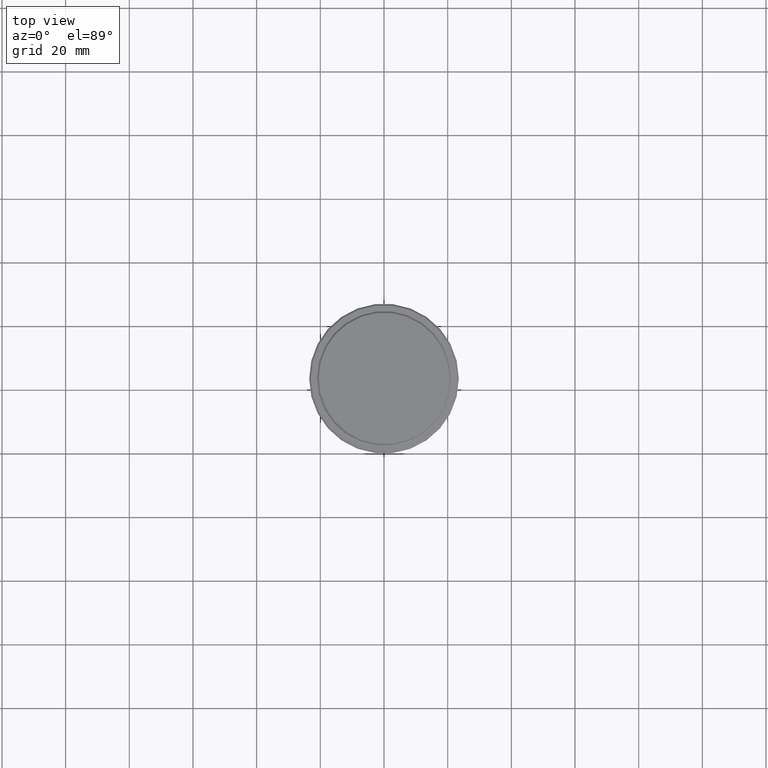
[diagram: clean part render]
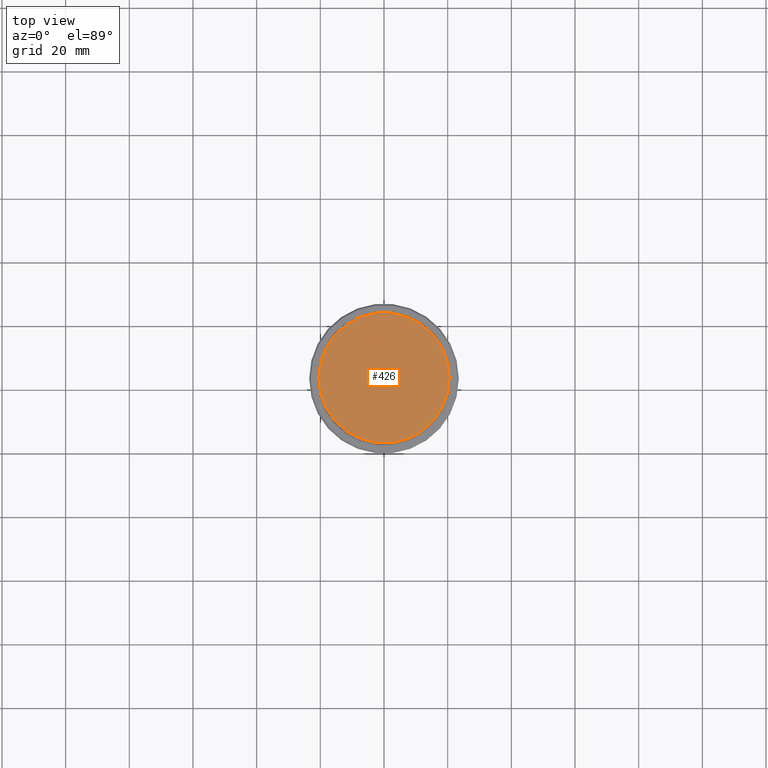
[diagram: same view with one face highlighted and labeled with its STEP entity id]
A machine part, top view. The second image highlights one B-rep face of the part: STEP entity #426.
In plain terms, the highlighted planar face has unit normal (0, -0, 1).
Its self-contained STEP definition (entity closure, byte-faithful):
#19 = DIRECTION ( 'NONE',  ( -0.000000000000000000, -0.000000000000000000, 1.000000000000000000 ) ) ;
#38 = CARTESIAN_POINT ( 'NONE',  ( 20.49999999999998934, 2.541142108230757085E-15, 0.000000000000000000 ) ) ;
#54 = DIRECTION ( 'NONE',  ( 1.000000000000000000, 0.000000000000000000, 0.000000000000000000 ) ) ;
#90 = VERTEX_POINT ( 'NONE', #38 ) ;
#107 = AXIS2_PLACEMENT_3D ( 'NONE', #383, #706, #54 ) ;
#121 = DIRECTION ( 'NONE',  ( 1.000000000000000000, 0.000000000000000000, 0.000000000000000000 ) ) ;
#142 = FACE_OUTER_BOUND ( 'NONE', #844, .T. ) ;
#203 = CIRCLE ( 'NONE', #400, 20.49999999999998934 ) ;
#234 = CARTESIAN_POINT ( 'NONE',  ( 0.000000000000000000, 0.000000000000000000, 0.000000000000000000 ) ) ;
#293 = ORIENTED_EDGE ( 'NONE', *, *, #902, .T. ) ;
#383 = CARTESIAN_POINT ( 'NONE',  ( 0.000000000000000000, 0.000000000000000000, 0.000000000000000000 ) ) ;
#386 = CARTESIAN_POINT ( 'NONE',  ( 0.000000000000000000, 0.000000000000000000, 0.000000000000000000 ) ) ;
#400 = AXIS2_PLACEMENT_3D ( 'NONE', #234, #19, #121 ) ;
#426 = ADVANCED_FACE ( 'NONE', ( #142 ), #1247, .T. ) ;
#706 = DIRECTION ( 'NONE',  ( -0.000000000000000000, -0.000000000000000000, 1.000000000000000000 ) ) ;
#844 = EDGE_LOOP ( 'NONE', ( #293, #958 ) ) ;
#852 = VERTEX_POINT ( 'NONE', #1115 ) ;
#902 = EDGE_CURVE ( 'NONE', #852, #90, #203, .T. ) ;
#958 = ORIENTED_EDGE ( 'NONE', *, *, #1085, .T. ) ;
#1085 = EDGE_CURVE ( 'NONE', #90, #852, #1131, .T. ) ;
#1115 = CARTESIAN_POINT ( 'NONE',  ( -20.49999999999998934, 0.000000000000000000, 0.000000000000000000 ) ) ;
#1131 = CIRCLE ( 'NONE', #107, 20.49999999999998934 ) ;
#1229 = DIRECTION ( 'NONE',  ( 0.000000000000000000, -0.000000000000000000, 1.000000000000000000 ) ) ;
#1235 = DIRECTION ( 'NONE',  ( 1.000000000000000000, 0.000000000000000000, 0.000000000000000000 ) ) ;
#1247 = PLANE ( 'NONE',  #1293 ) ;
#1293 = AXIS2_PLACEMENT_3D ( 'NONE', #386, #1229, #1235 ) ;